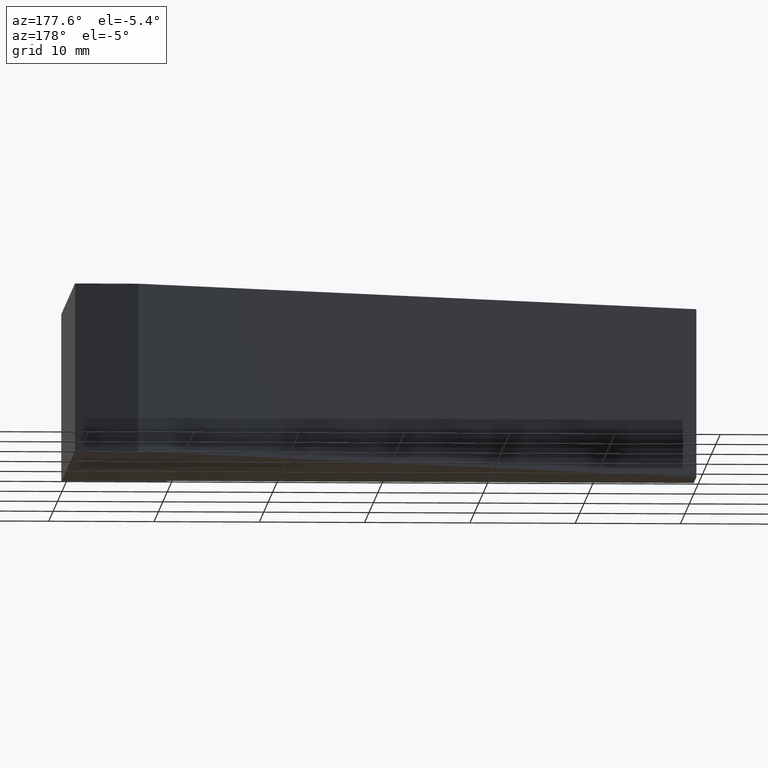
[diagram: clean part render]
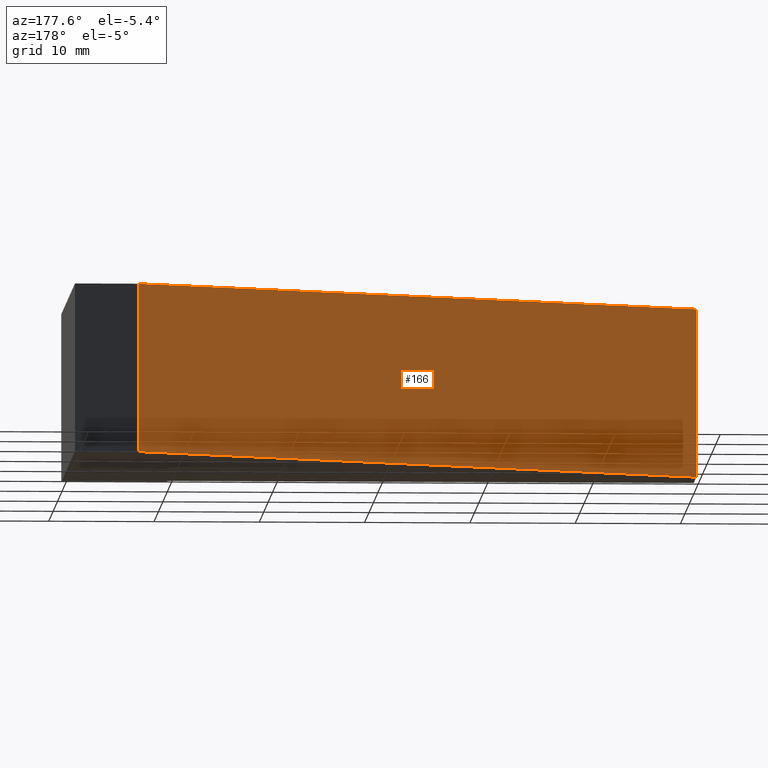
[diagram: same view with one face highlighted and labeled with its STEP entity id]
A machine part, auxiliary view. The second image highlights one B-rep face of the part: STEP entity #166.
In plain terms, the highlighted planar face has unit normal (-0.399, 0.9169, 0).
Its self-contained STEP definition (entity closure, byte-faithful):
#20=FACE_OUTER_BOUND('',#29,.T.);
#29=EDGE_LOOP('',(#130,#131,#132,#133));
#39=LINE('',#258,#60);
#47=LINE('',#273,#68);
#48=LINE('',#276,#69);
#49=LINE('',#277,#70);
#60=VECTOR('',#212,10.);
#68=VECTOR('',#226,10.);
#69=VECTOR('',#229,10.);
#70=VECTOR('',#230,10.);
#81=VERTEX_POINT('',#255);
#82=VERTEX_POINT('',#257);
#86=VERTEX_POINT('',#271);
#87=VERTEX_POINT('',#275);
#95=EDGE_CURVE('',#82,#81,#39,.T.);
#103=EDGE_CURVE('',#86,#81,#47,.T.);
#104=EDGE_CURVE('',#86,#87,#48,.T.);
#105=EDGE_CURVE('',#87,#82,#49,.T.);
#130=ORIENTED_EDGE('',*,*,#104,.T.);
#131=ORIENTED_EDGE('',*,*,#105,.T.);
#132=ORIENTED_EDGE('',*,*,#95,.T.);
#133=ORIENTED_EDGE('',*,*,#103,.F.);
#157=PLANE('',#198);
#166=ADVANCED_FACE('',(#20),#157,.T.);
#198=AXIS2_PLACEMENT_3D('',#274,#227,#228);
#212=DIRECTION('',(-0.916935025341359,-0.399036538805962,0.));
#226=DIRECTION('',(0.,0.,-1.));
#227=DIRECTION('center_axis',(-0.399036538805962,0.916935025341359,0.));
#228=DIRECTION('ref_axis',(0.,0.,1.));
#229=DIRECTION('',(0.916935025341359,0.399036538805962,0.));
#230=DIRECTION('',(0.,0.,-1.));
#255=CARTESIAN_POINT('',(-60.,6.,-8.));
#257=CARTESIAN_POINT('',(-6.00000000000001,29.5,-8.));
#258=CARTESIAN_POINT('',(-60.,6.,-8.));
#271=CARTESIAN_POINT('',(-60.,6.,8.));
#273=CARTESIAN_POINT('',(-60.,6.,0.));
#274=CARTESIAN_POINT('Origin',(-60.,6.,0.));
#275=CARTESIAN_POINT('',(-6.00000000000001,29.5,8.));
#276=CARTESIAN_POINT('',(-60.,6.,8.));
#277=CARTESIAN_POINT('',(-6.00000000000001,29.5,0.));